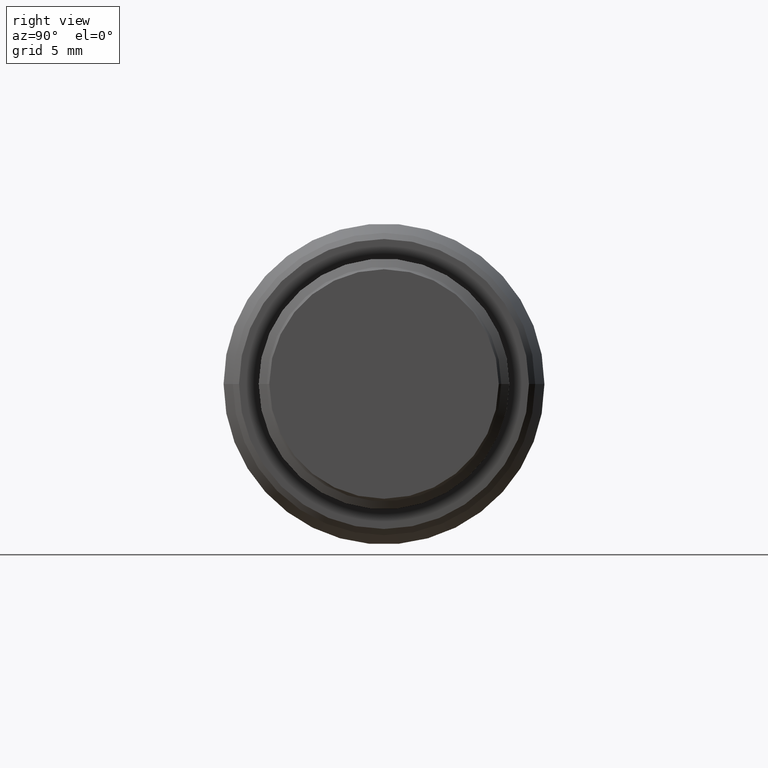
[diagram: clean part render]
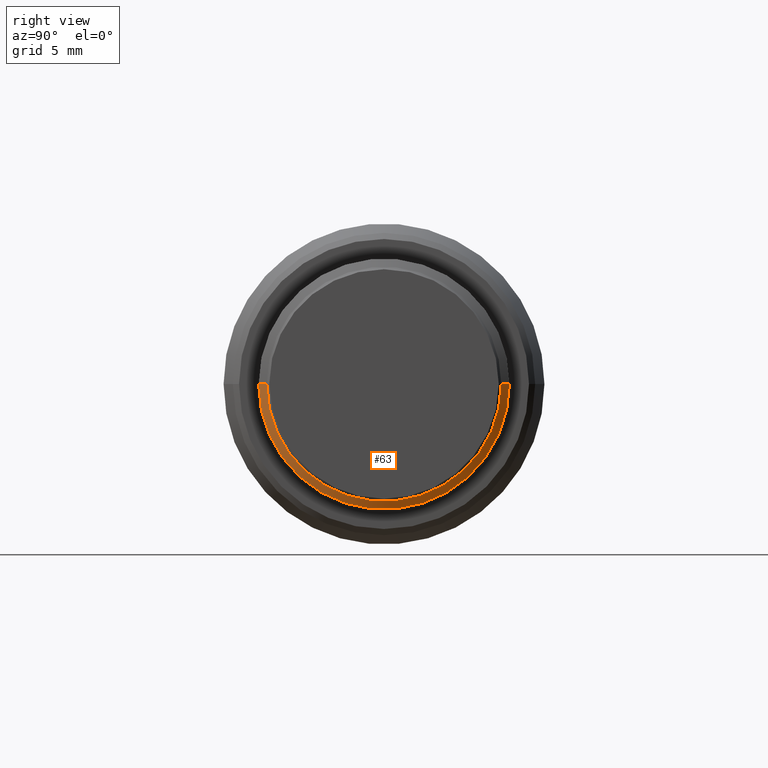
[diagram: same view with one face highlighted and labeled with its STEP entity id]
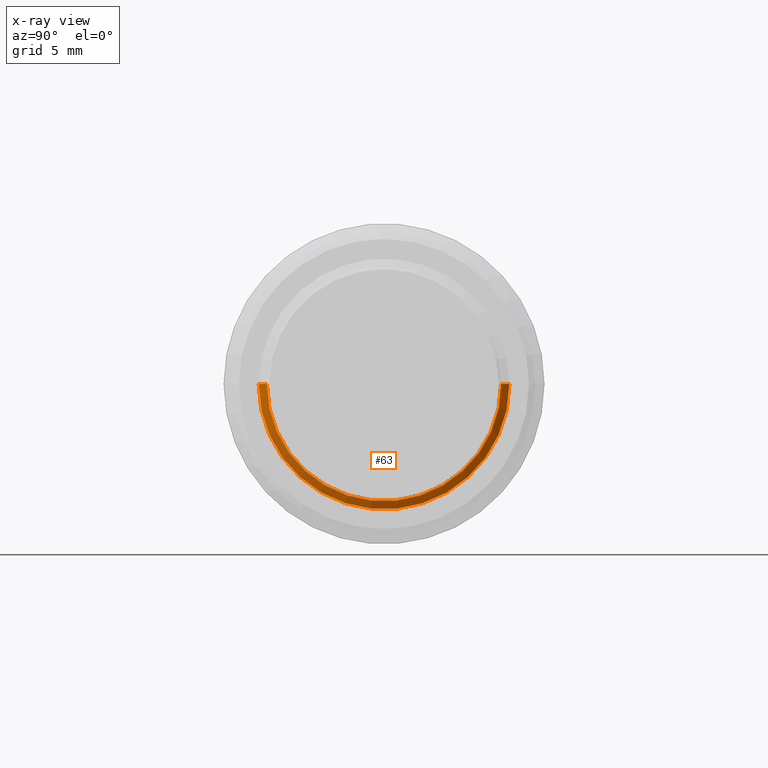
[diagram: x-ray of the same camera — body ghosted, the highlighted face saturated]
A machine part, right view. The second image highlights one B-rep face of the part: STEP entity #63.
The next image is the same camera in x-ray: the body ghosted, the highlighted face saturated — about 0% of this face is hidden behind the body in this view.
In plain terms, the highlighted conical surface has half-angle 60 deg.
Its self-contained STEP definition (entity closure, byte-faithful):
#35 = CARTESIAN_POINT ( 'NONE',  ( 41.11894882233480075, -10.16000000000000014, -1.244241147933709878E-15 ) ) ;
#40 = ORIENTED_EDGE ( 'NONE', *, *, #751, .T. ) ;
#63 = ADVANCED_FACE ( 'NONE', ( #292 ), #208, .T. ) ;
#85 = EDGE_CURVE ( 'NONE', #848, #285, #1063, .T. ) ;
#102 = DIRECTION ( 'NONE',  ( 0.000000000000000000, 1.000000000000000000, 0.000000000000000000 ) ) ;
#114 = DIRECTION ( 'NONE',  ( 1.000000000000000000, 1.860059517696599800E-16, 0.000000000000000000 ) ) ;
#167 = ORIENTED_EDGE ( 'NONE', *, *, #85, .F. ) ;
#208 = CONICAL_SURFACE ( 'NONE', #842, 10.16000000000000014, 1.047197551196598297 ) ;
#218 = LINE ( 'NONE', #35, #1169 ) ;
#257 = CIRCLE ( 'NONE', #405, 10.16000000000000014 ) ;
#285 = VERTEX_POINT ( 'NONE', #396 ) ;
#292 = FACE_OUTER_BOUND ( 'NONE', #456, .T. ) ;
#393 = CARTESIAN_POINT ( 'NONE',  ( 41.11894882233480075, -10.16000000000000014, -1.244241147933709878E-15 ) ) ;
#396 = CARTESIAN_POINT ( 'NONE',  ( 41.11894882233480075, 10.16000000000000014, 0.000000000000000000 ) ) ;
#400 = VERTEX_POINT ( 'NONE', #726 ) ;
#405 = AXIS2_PLACEMENT_3D ( 'NONE', #791, #1157, #102 ) ;
#410 = DIRECTION ( 'NONE',  ( -0.4999999999999998890, -0.8660254037844387076, -1.060575238724909750E-16 ) ) ;
#425 = AXIS2_PLACEMENT_3D ( 'NONE', #1013, #114, #1084 ) ;
#456 = EDGE_LOOP ( 'NONE', ( #40, #167, #978, #714 ) ) ;
#484 = CIRCLE ( 'NONE', #425, 9.500000000000000000 ) ;
#559 = DIRECTION ( 'NONE',  ( -1.000000000000000000, -1.860059517696599800E-16, 0.000000000000000000 ) ) ;
#673 = CARTESIAN_POINT ( 'NONE',  ( 41.11894882233480075, 10.16000000000000014, 0.000000000000000000 ) ) ;
#704 = VECTOR ( 'NONE', #1245, 1000.000000000000000 ) ;
#714 = ORIENTED_EDGE ( 'NONE', *, *, #995, .T. ) ;
#726 = CARTESIAN_POINT ( 'NONE',  ( 41.50000000000000000, -9.500000000000000000, 0.000000000000000000 ) ) ;
#751 = EDGE_CURVE ( 'NONE', #836, #285, #257, .T. ) ;
#765 = CARTESIAN_POINT ( 'NONE',  ( 41.11894882233480075, 5.801430442192509910E-16, 0.000000000000000000 ) ) ;
#791 = CARTESIAN_POINT ( 'NONE',  ( 41.11894882233480075, 5.801430442192509910E-16, 0.000000000000000000 ) ) ;
#836 = VERTEX_POINT ( 'NONE', #393 ) ;
#842 = AXIS2_PLACEMENT_3D ( 'NONE', #765, #559, #856 ) ;
#848 = VERTEX_POINT ( 'NONE', #885 ) ;
#856 = DIRECTION ( 'NONE',  ( 0.000000000000000000, 1.000000000000000000, 0.000000000000000000 ) ) ;
#885 = CARTESIAN_POINT ( 'NONE',  ( 41.50000000000000000, 9.500000000000000000, -1.163414459189989824E-15 ) ) ;
#967 = EDGE_CURVE ( 'NONE', #400, #848, #484, .T. ) ;
#978 = ORIENTED_EDGE ( 'NONE', *, *, #967, .F. ) ;
#995 = EDGE_CURVE ( 'NONE', #400, #836, #218, .T. ) ;
#1013 = CARTESIAN_POINT ( 'NONE',  ( 41.50000000000000000, 6.510208311938079825E-16, 0.000000000000000000 ) ) ;
#1063 = LINE ( 'NONE', #673, #704 ) ;
#1084 = DIRECTION ( 'NONE',  ( 0.000000000000000000, 1.000000000000000000, 0.000000000000000000 ) ) ;
#1157 = DIRECTION ( 'NONE',  ( 1.000000000000000000, 1.860059517696599800E-16, 0.000000000000000000 ) ) ;
#1169 = VECTOR ( 'NONE', #410, 1000.000000000000000 ) ;
#1245 = DIRECTION ( 'NONE',  ( -0.4999999999999998890, 0.8660254037844387076, 0.000000000000000000 ) ) ;